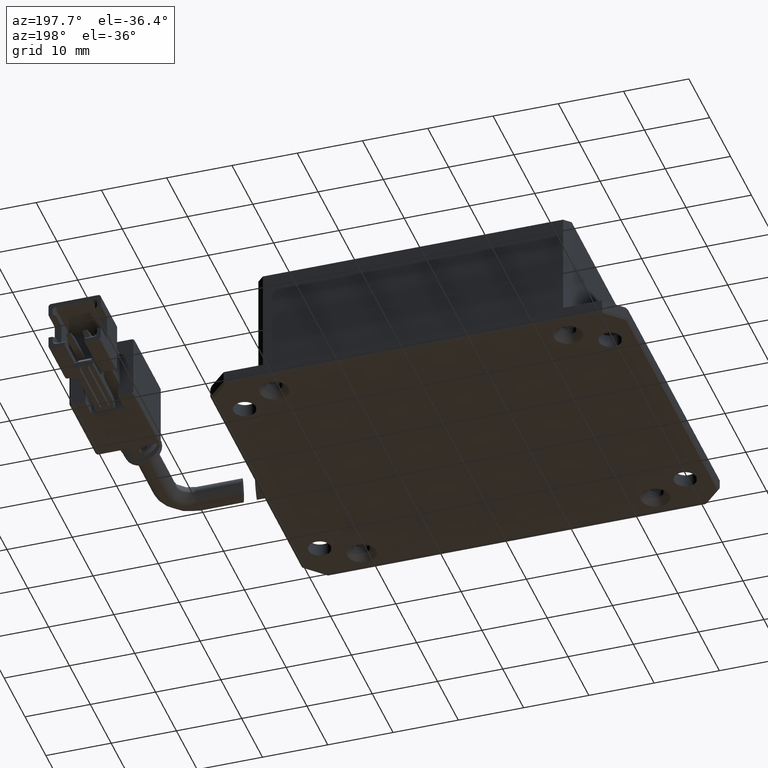
[diagram: clean part render]
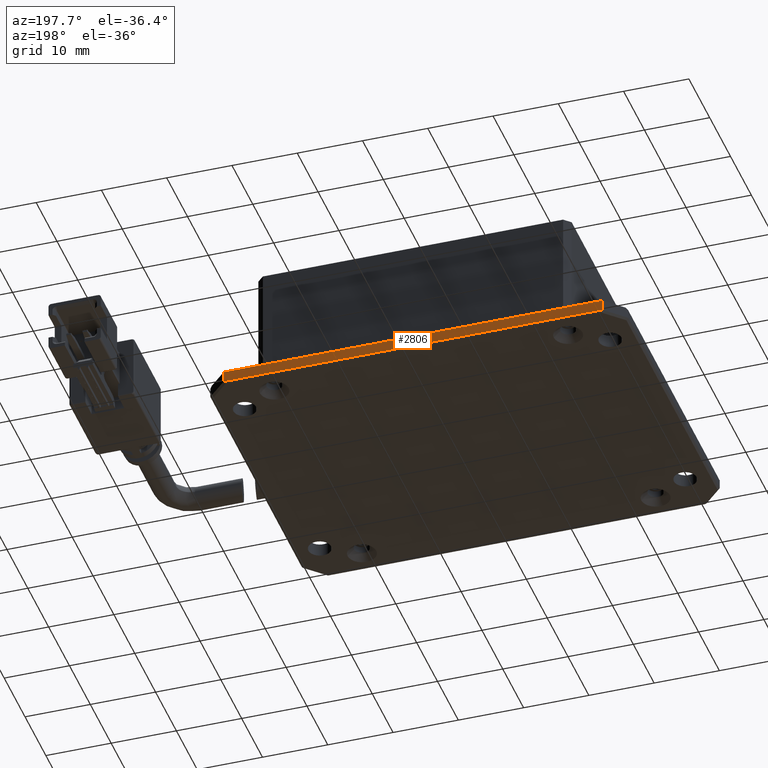
[diagram: same view with one face highlighted and labeled with its STEP entity id]
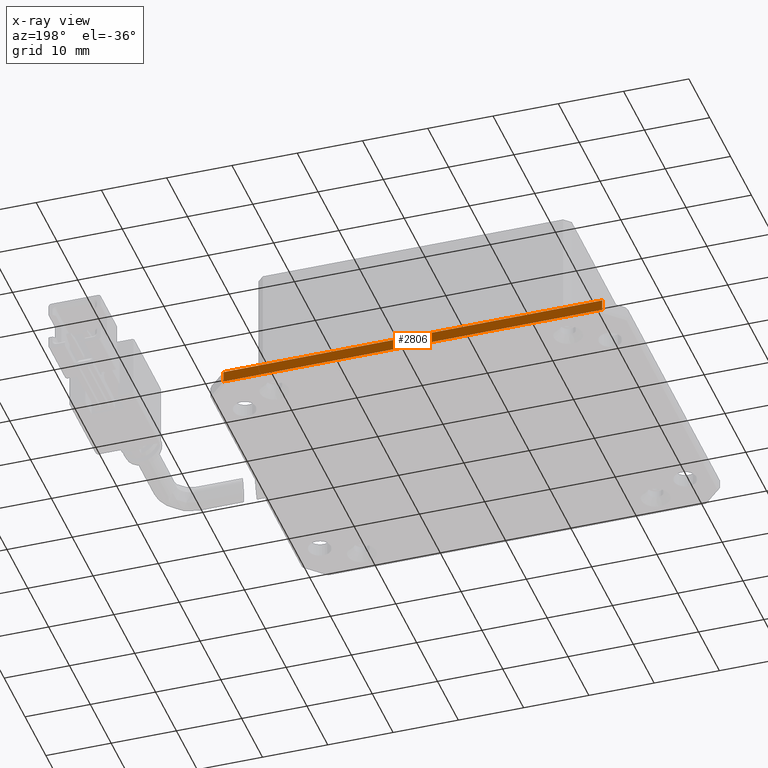
[diagram: x-ray of the same camera — body ghosted, the highlighted face saturated]
A machine part, auxiliary view. The second image highlights one B-rep face of the part: STEP entity #2806.
The next image is the same camera in x-ray: the body ghosted, the highlighted face saturated — about 0% of this face is hidden behind the body in this view.
In plain terms, the highlighted planar face has unit normal (0, -1, 0).
Its self-contained STEP definition (entity closure, byte-faithful):
#208 = LINE ( 'NONE', #12783, #16530 ) ;
#1091 = PLANE ( 'NONE',  #18442 ) ;
#1958 = EDGE_CURVE ( 'NONE', #18437, #19957, #18411, .T. ) ;
#2021 = CARTESIAN_POINT ( 'NONE',  ( -29.90683466972127700, 27.29095074455903400, -1.630813539765796300E-011 ) ) ;
#2120 = CARTESIAN_POINT ( 'NONE',  ( -29.90683466972130600, 27.29095074455903400, -1.700000000016293600 ) ) ;
#2346 = ORIENTED_EDGE ( 'NONE', *, *, #11766, .F. ) ;
#2396 = EDGE_CURVE ( 'NONE', #19957, #17699, #5936, .T. ) ;
#2806 = ADVANCED_FACE ( 'NONE', ( #11052 ), #1091, .F. ) ;
#5042 = CARTESIAN_POINT ( 'NONE',  ( 28.09316533027870500, 27.29095074455903400, -2.000000000016308300 ) ) ;
#5186 = DIRECTION ( 'NONE',  ( -1.000000000000000000, -0.0000000000000000000, -0.0000000000000000000 ) ) ;
#5936 = LINE ( 'NONE', #5042, #13821 ) ;
#6630 = CARTESIAN_POINT ( 'NONE',  ( 28.09316533027870500, 27.29095074455903400, -1.630748487635447200E-011 ) ) ;
#7409 = CARTESIAN_POINT ( 'NONE',  ( 31.09316533027871900, 27.29095074455903400, -2.000000000016308300 ) ) ;
#9001 = DIRECTION ( 'NONE',  ( -0.0000000000000000000, 0.0000000000000000000, 1.000000000000000000 ) ) ;
#9908 = VECTOR ( 'NONE', #19336, 1000.000000000000000 ) ;
#9952 = ORIENTED_EDGE ( 'NONE', *, *, #1958, .F. ) ;
#10473 = LINE ( 'NONE', #17650, #14699 ) ;
#11052 = FACE_OUTER_BOUND ( 'NONE', #17155, .T. ) ;
#11766 = EDGE_CURVE ( 'NONE', #17699, #17259, #10473, .T. ) ;
#12277 = EDGE_CURVE ( 'NONE', #18437, #17259, #208, .T. ) ;
#12783 = CARTESIAN_POINT ( 'NONE',  ( -29.90683466972129200, 27.29095074455903400, -2.000000000016308300 ) ) ;
#13029 = CARTESIAN_POINT ( 'NONE',  ( 31.09316533027871900, 27.29095074455903400, -1.700000000016292700 ) ) ;
#13821 = VECTOR ( 'NONE', #17710, 1000.000000000000000 ) ;
#14397 = DIRECTION ( 'NONE',  ( -0.0000000000000000000, -0.0000000000000000000, 1.000000000000000000 ) ) ;
#14699 = VECTOR ( 'NONE', #5186, 1000.000000000000000 ) ;
#14907 = CARTESIAN_POINT ( 'NONE',  ( 28.09316533027870500, 27.29095074455903400, -1.700000000016292700 ) ) ;
#15995 = ORIENTED_EDGE ( 'NONE', *, *, #12277, .T. ) ;
#16530 = VECTOR ( 'NONE', #14397, 1000.000000000000000 ) ;
#17155 = EDGE_LOOP ( 'NONE', ( #9952, #15995, #2346, #19126 ) ) ;
#17259 = VERTEX_POINT ( 'NONE', #2021 ) ;
#17650 = CARTESIAN_POINT ( 'NONE',  ( 31.09316533027871900, 27.29095074455903400, -1.630813539765796300E-011 ) ) ;
#17699 = VERTEX_POINT ( 'NONE', #6630 ) ;
#17710 = DIRECTION ( 'NONE',  ( -0.0000000000000000000, 0.0000000000000000000, 1.000000000000000000 ) ) ;
#18411 = LINE ( 'NONE', #13029, #9908 ) ;
#18437 = VERTEX_POINT ( 'NONE', #2120 ) ;
#18442 = AXIS2_PLACEMENT_3D ( 'NONE', #7409, #18520, #9001 ) ;
#18520 = DIRECTION ( 'NONE',  ( 0.0000000000000000000, -1.000000000000000000, 0.0000000000000000000 ) ) ;
#19126 = ORIENTED_EDGE ( 'NONE', *, *, #2396, .F. ) ;
#19336 = DIRECTION ( 'NONE',  ( 1.000000000000000000, -0.0000000000000000000, -0.0000000000000000000 ) ) ;
#19957 = VERTEX_POINT ( 'NONE', #14907 ) ;